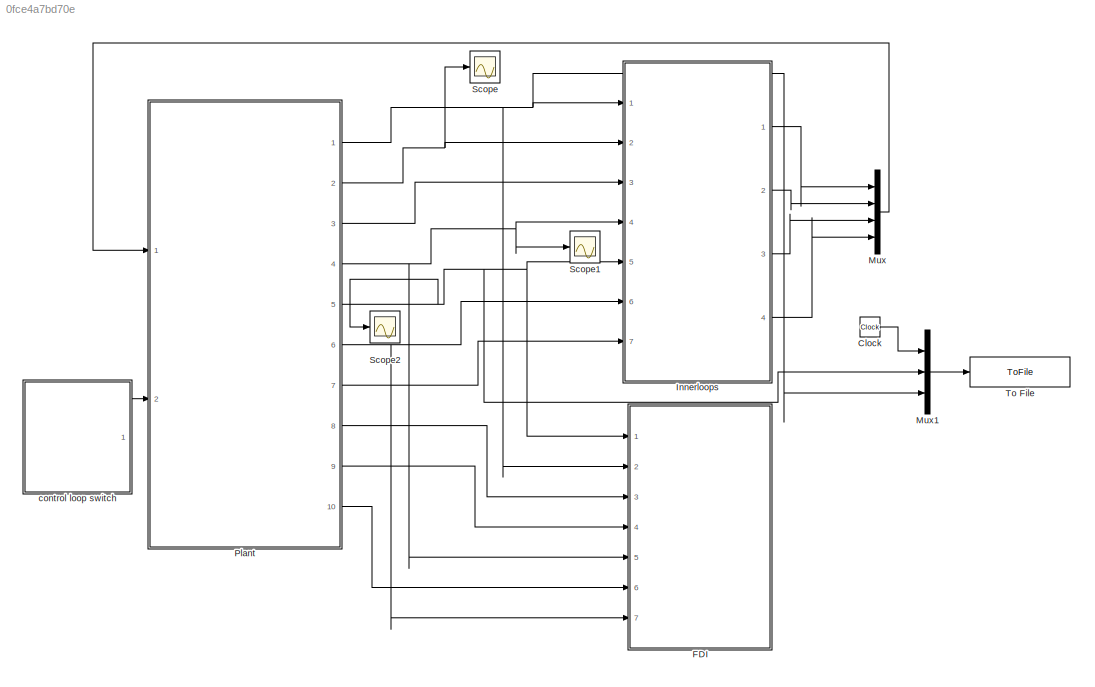
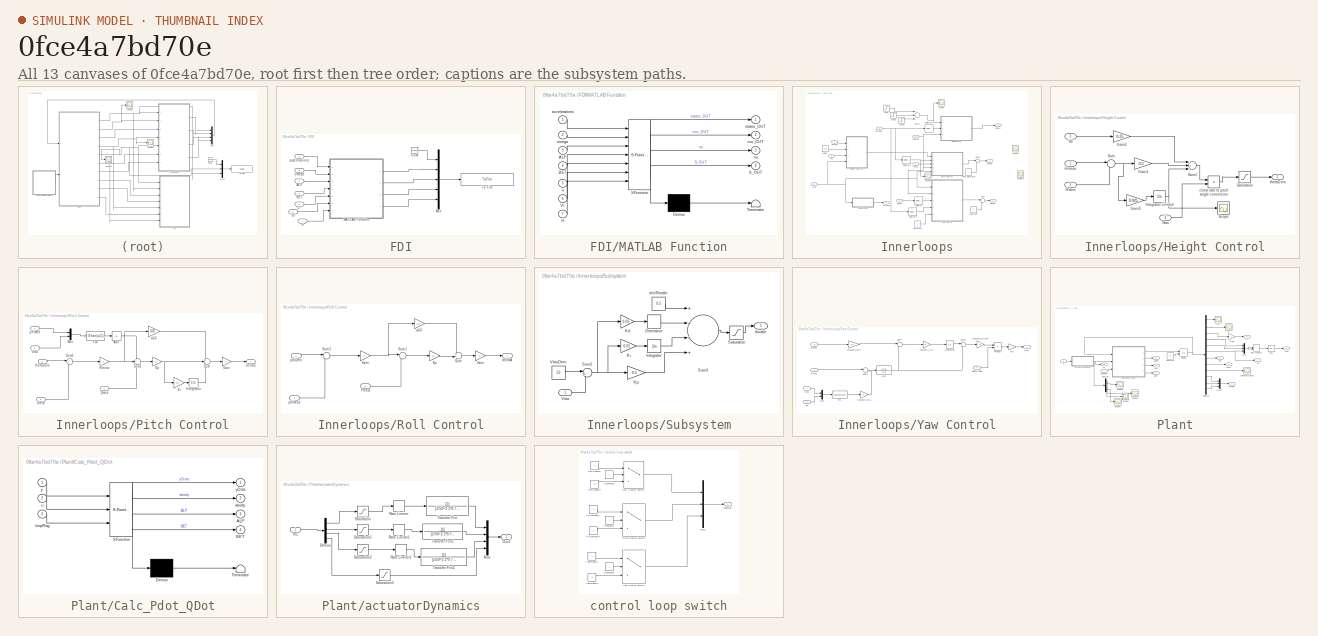
[diagram: thumbnail index - all 13 canvases of the model, root first then tree order]
MODEL slx_0fce4a7bd70e
KIND model
CONFIG InitFcn = InitialiseModel
BLOCK [Clock] Clock
BLOCK [SubSystem] FDI
  Ports = [7]
  RequestExecContextInheritance = off
BLOCK [Inport] FDI/ALP
  IconDisplay = Port number
  Port = 3
BLOCK [Inport] FDI/BET
  IconDisplay = Port number
  Port = 4
BLOCK [Clock] FDI/Clock
BLOCK [Inport] FDI/H
  IconDisplay = Port number
  Port = 7
BLOCK [SubSystem] FDI/MATLAB Function
  ErrorFcn = Stateflow.Translate.translate
  PermitHierarchicalResolution = ExplicitOnly
  Ports = [7, 4]
  RequestExecContextInheritance = off
  SFBlockType = MATLAB Function
  TreatAsAtomicUnit = on
BLOCK [Demux] FDI/MATLAB Function/ Demux 
  Outputs = 1
  Ports = [1, 1]
BLOCK [S-Function] FDI/MATLAB Function/ SFunction 
  EnableBusSupport = on
  FunctionName = sf_sfun
  PortCounts = [7 5]
  Ports = [7, 5]
  Tag = Stateflow S-Function aircraftControl_smallerStateEKF 1
BLOCK [Terminator] FDI/MATLAB Function/ Terminator 
BLOCK [Inport] FDI/MATLAB Function/ALP
  IconDisplay = Port number
  Port = 3
BLOCK [Inport] FDI/MATLAB Function/BET
  IconDisplay = Port number
  Port = 4
BLOCK [Inport] FDI/MATLAB Function/H
  IconDisplay = Port number
  Port = 7
BLOCK [Outport] FDI/MATLAB Function/S_OUT
  IconDisplay = Port number
  Port = 4
BLOCK [Inport] FDI/MATLAB Function/Vt
  IconDisplay = Port number
  Port = 6
BLOCK [Inport] FDI/MATLAB Function/accelerations
  IconDisplay = Port number
BLOCK [Outport] FDI/MATLAB Function/cov_OUT
  IconDisplay = Port number
  Port = 2
BLOCK [Outport] FDI/MATLAB Function/nu
  IconDisplay = Port number
  Port = 3
BLOCK [Inport] FDI/MATLAB Function/omega
  IconDisplay = Port number
  Port = 2
BLOCK [Outport] FDI/MATLAB Function/states_OUT
  IconDisplay = Port number
BLOCK [Inport] FDI/MATLAB Function/u
  IconDisplay = Port number
  Port = 5
BLOCK [Mux] FDI/Mux
  DisplayOption = bar
  Inputs = 5
  Ports = [5, 1]
BLOCK [ToFile] FDI/To File
  Filename = EKF_data_smallerStateVec.mat
  MatrixName = EKF
  Ports = [1]
  SaveFormat = Timeseries
BLOCK [Inport] FDI/Vt
  IconDisplay = Port number
  Port = 5
BLOCK [Inport] FDI/accelerations
  IconDisplay = Port number
BLOCK [Inport] FDI/omega
  IconDisplay = Port number
  Port = 2
BLOCK [Inport] FDI/u*
  IconDisplay = Port number
  Port = 6
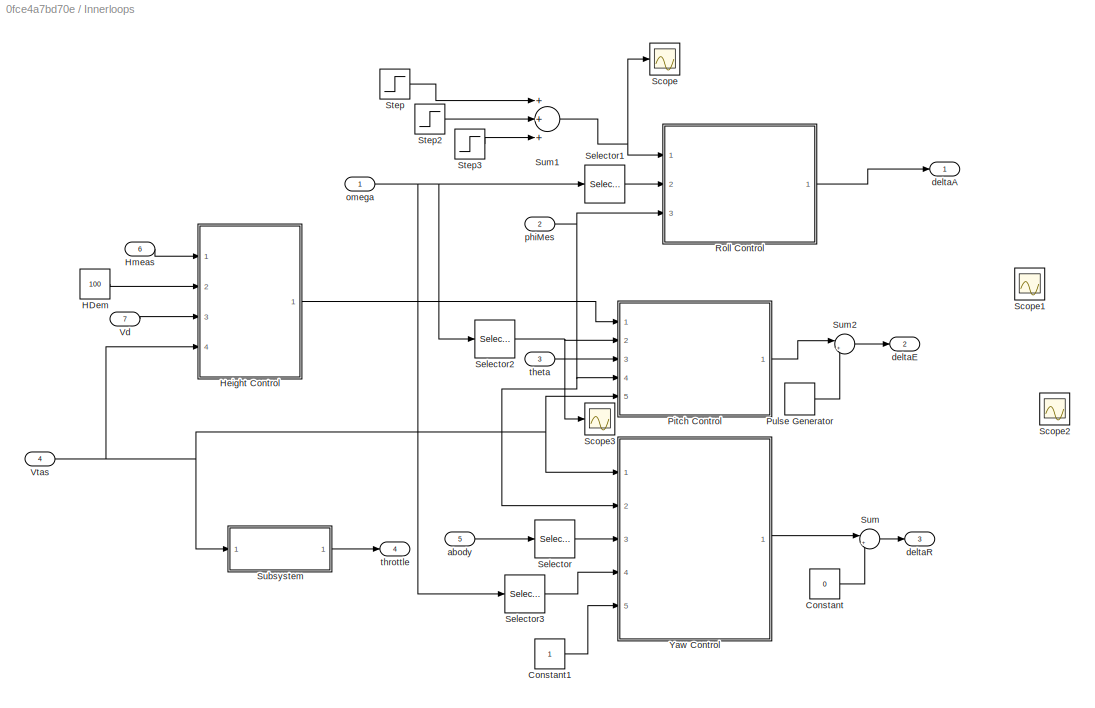
BLOCK [SubSystem] Innerloops
  Ports = [7, 4]
  RequestExecContextInheritance = off
BLOCK [Constant] Innerloops/Constant
  Value = 0
BLOCK [Constant] Innerloops/Constant1
BLOCK [Constant] Innerloops/HDem
  Value = 100
BLOCK [SubSystem] Innerloops/Height Control
  Ports = [4, 1]
  RequestExecContextInheritance = off
BLOCK [Gain] Innerloops/Height Control/Gain1
  Gain = 0.5
  OutDataTypeStr = Inherit: Inherit via internal rule
  ParamDataTypeStr = Inherit: Inherit via internal rule
  SaturateOnIntegerOverflow = off
BLOCK [Gain] Innerloops/Height Control/Gain2
  Gain = 0.25
  OutDataTypeStr = Inherit: Inherit via internal rule
  ParamDataTypeStr = Inherit: Inherit via internal rule
  SaturateOnIntegerOverflow = off
BLOCK [Gain] Innerloops/Height Control/Gain3
  Gain = 0.025
  OutDataTypeStr = Inherit: Inherit via internal rule
  ParamDataTypeStr = Inherit: Inherit via internal rule
  SaturateOnIntegerOverflow = off
BLOCK [Inport] Innerloops/Height Control/Hdem
  IconDisplay = Port number
  Port = 2
BLOCK [Inport] Innerloops/Height Control/Hmeas
  IconDisplay = Port number
BLOCK [Integrator] Innerloops/Height Control/Integrator Limited
  LimitOutput = on
  LowerSaturationLimit = -5
  Ports = [1, 1]
  UpperSaturationLimit = 5
BLOCK [Saturate] Innerloops/Height Control/Saturation
  InputPortMap = u0
  LowerLimit = 0
  Ports = [1, 1]
  UpperLimit = 0.25
BLOCK [Scope] Innerloops/Height Control/Scope
  Decimation = 10
  Floating = off
  LimitDataPoints = off
  NumInputPorts = 1
  Ports = [1]
  SaveName = ScopeData5
  ShowLegends = off
BLOCK [Sum] Innerloops/Height Control/Sum
  IconShape = round
  InputSameDT = off
  Inputs = |-+
  OutDataTypeStr = Inherit: Inherit via internal rule
  Ports = [2, 1]
  SaturateOnIntegerOverflow = off
BLOCK [Sum] Innerloops/Height Control/Sum1
  InputSameDT = off
  Inputs = +++
  OutDataTypeStr = Inherit: Inherit via internal rule
  Ports = [3, 1]
  SaturateOnIntegerOverflow = off
BLOCK [Inport] Innerloops/Height Control/Vd
  IconDisplay = Port number
  Port = 3
BLOCK [Inport] Innerloops/Height Control/Vtas
  IconDisplay = Port number
  Port = 4
BLOCK [Product] Innerloops/Height Control/climb rate to pitch angle conversion
  InputSameDT = off
  Inputs = */
  OutDataTypeStr = Inherit: Inherit via internal rule
  Ports = [2, 1]
  RndMeth = Floor
  SaturateOnIntegerOverflow = off
BLOCK [Outport] Innerloops/Height Control/thetaDem
  IconDisplay = Port number
BLOCK [Inport] Innerloops/Hmeas
  IconDisplay = Port number
  Port = 6
BLOCK [SubSystem] Innerloops/Pitch Control
  Ports = [5, 1]
  RequestExecContextInheritance = off
BLOCK [Abs] Innerloops/Pitch Control/Abs
  SaturateOnIntegerOverflow = off
BLOCK [Fcn] Innerloops/Pitch Control/Fcn
  Expr = (9.8*tan(u(1))*sin(u(1))/u(2))
BLOCK [Gain] Innerloops/Pitch Control/Gain
  Gain = -1
  OutDataTypeStr = Inherit: Inherit via internal rule
  ParamDataTypeStr = Inherit: Inherit via internal rule
  SaturateOnIntegerOverflow = off
BLOCK [Integrator] Innerloops/Pitch Control/Integrator
  Ports = [1, 1]
BLOCK [Gain] Innerloops/Pitch Control/KFF
  Gain = 0.01
  OutDataTypeStr = Inherit: Inherit via internal rule
  ParamDataTypeStr = Inherit: Inherit via internal rule
  SaturateOnIntegerOverflow = off
BLOCK [Gain] Innerloops/Pitch Control/Ki
  Gain = 0.7
  OutDataTypeStr = Inherit: Inherit via internal rule
  ParamDataTypeStr = Inherit: Inherit via internal rule
  SaturateOnIntegerOverflow = off
BLOCK [Gain] Innerloops/Pitch Control/Kp
  Gain = 1.2
  OutDataTypeStr = Inherit: Inherit via internal rule
  ParamDataTypeStr = Inherit: Inherit via internal rule
  SaturateOnIntegerOverflow = off
BLOCK [Gain] Innerloops/Pitch Control/Ktheta
  Gain = 2
  OutDataTypeStr = Inherit: Inherit via internal rule
  ParamDataTypeStr = Inherit: Inherit via internal rule
  SaturateOnIntegerOverflow = off
BLOCK [Mux] Innerloops/Pitch Control/Mux
  DisplayOption = bar
  Inputs = 2
  Ports = [2, 1]
BLOCK [Inport] Innerloops/Pitch Control/Qmea
  IconDisplay = Port number
  Port = 2
BLOCK [Sum] Innerloops/Pitch Control/Sum
  IconShape = round
  InputSameDT = off
  Inputs = +++
  OutDataTypeStr = Inherit: Inherit via internal rule
  Ports = [3, 1]
  SaturateOnIntegerOverflow = off
BLOCK [Sum] Innerloops/Pitch Control/Sum1
  IconShape = round
  InputSameDT = off
  Inputs = ++-
  OutDataTypeStr = Inherit: Inherit via internal rule
  Ports = [3, 1]
  SaturateOnIntegerOverflow = off
BLOCK [Sum] Innerloops/Pitch Control/Sum2
  IconShape = round
  InputSameDT = off
  Inputs = |+-
  OutDataTypeStr = Inherit: Inherit via internal rule
  Ports = [2, 1]
  SaturateOnIntegerOverflow = off
BLOCK [Inport] Innerloops/Pitch Control/Vtas
  IconDisplay = Port number
  Port = 5
BLOCK [Outport] Innerloops/Pitch Control/deltaE
  IconDisplay = Port number
BLOCK [Inport] Innerloops/Pitch Control/phiMea
  IconDisplay = Port number
  Port = 4
BLOCK [Inport] Innerloops/Pitch Control/theta
  IconDisplay = Port number
  Port = 3
BLOCK [Inport] Innerloops/Pitch Control/thetaDem
  IconDisplay = Port number
BLOCK [DiscretePulseGenerator] Innerloops/Pulse Generator
  Amplitude = 0.1
  Period = 1
  Ports = [0, 1]
  PulseType = Time based
  PulseWidth = 50
BLOCK [SubSystem] Innerloops/Roll Control
  Ports = [3, 1]
  RequestExecContextInheritance = off
BLOCK [Gain] Innerloops/Roll Control/Gain
  Gain = -1
  OutDataTypeStr = Inherit: Inherit via internal rule
  ParamDataTypeStr = Inherit: Inherit via internal rule
  SaturateOnIntegerOverflow = off
BLOCK [Gain] Innerloops/Roll Control/KFF
  Gain = 0.8
  OutDataTypeStr = Inherit: Inherit via internal rule
  ParamDataTypeStr = Inherit: Inherit via internal rule
  SaturateOnIntegerOverflow = off
BLOCK [Gain] Innerloops/Roll Control/Kp
  Gain = 2.2
  OutDataTypeStr = Inherit: Inherit via internal rule
  ParamDataTypeStr = Inherit: Inherit via internal rule
  SaturateOnIntegerOverflow = off
BLOCK [Gain] Innerloops/Roll Control/Kphi
  Gain = 2
  OutDataTypeStr = Inherit: Inherit via internal rule
  ParamDataTypeStr = Inherit: Inherit via internal rule
  SaturateOnIntegerOverflow = off
BLOCK [Inport] Innerloops/Roll Control/Pmea
  IconDisplay = Port number
  Port = 2
BLOCK [Sum] Innerloops/Roll Control/Sum
  IconShape = round
  InputSameDT = off
  Inputs = ++|
  OutDataTypeStr = Inherit: Inherit via internal rule
  Ports = [2, 1]
  SaturateOnIntegerOverflow = off
BLOCK [Sum] Innerloops/Roll Control/Sum1
  IconShape = round
  InputSameDT = off
  Inputs = |+-
  OutDataTypeStr = Inherit: Inherit via internal rule
  Ports = [2, 1]
  SaturateOnIntegerOverflow = off
BLOCK [Sum] Innerloops/Roll Control/Sum2
  IconShape = round
  InputSameDT = off
  Inputs = |+-
  OutDataTypeStr = Inherit: Inherit via internal rule
  Ports = [2, 1]
  SaturateOnIntegerOverflow = off
BLOCK [Outport] Innerloops/Roll Control/deltaA
  IconDisplay = Port number
BLOCK [Inport] Innerloops/Roll Control/phiDem
  IconDisplay = Port number
BLOCK [Inport] Innerloops/Roll Control/phiMea
  IconDisplay = Port number
  Port = 3
BLOCK [Scope] Innerloops/Scope
  DataFormat = StructureWithTime
  Floating = off
  NumInputPorts = 1
  Ports = [1]
  SampleTime = 0
  SaveName = ScopeData2
  ShowLegends = off
BLOCK [Scope] Innerloops/Scope1
  Floating = off
  NumInputPorts = 1
  Ports = [1]
  SaveName = ScopeData11
  ShowLegends = off
BLOCK [Scope] Innerloops/Scope2
  Floating = off
  NumInputPorts = 1
  Ports = [1]
  SaveName = ScopeData12
  ShowLegends = off
BLOCK [Scope] Innerloops/Scope3
  Floating = off
  NumInputPorts = 1
  Ports = [1]
  SaveName = ScopeData13
  ShowLegends = off
BLOCK [Selector] Innerloops/Selector
  Indices = 2
  InputPortWidth = 3
  Ports = [1, 1]
BLOCK [Selector] Innerloops/Selector1
  InputPortWidth = 3
  Ports = [1, 1]
BLOCK [Selector] Innerloops/Selector2
  Indices = 2
  InputPortWidth = 3
  Ports = [1, 1]
BLOCK [Selector] Innerloops/Selector3
  Indices = 3
  InputPortWidth = 3
  Ports = [1, 1]
BLOCK [Step] Innerloops/Step
  After = 0.5
  SampleTime = 0
BLOCK [Step] Innerloops/Step2
  After = -1
  SampleTime = 0
  Time = 40
BLOCK [Step] Innerloops/Step3
  After = 0.5
  SampleTime = 0
  Time = 70
BLOCK [SubSystem] Innerloops/Subsystem
  Ports = [1, 1]
  RequestExecContextInheritance = off
BLOCK [Derivative] Innerloops/Subsystem/Derivative
BLOCK [Integrator] Innerloops/Subsystem/Integrator
  LimitOutput = on
  LowerSaturationLimit = -0.5
  Ports = [1, 1]
  UpperSaturationLimit = 0.5
BLOCK [Gain] Innerloops/Subsystem/Kd
  Gain = 0.05
  OutDataTypeStr = Inherit: Inherit via internal rule
  ParamDataTypeStr = Inherit: Inherit via internal rule
  SaturateOnIntegerOverflow = off
BLOCK [Gain] Innerloops/Subsystem/Ki
  Gain = 0.01
  OutDataTypeStr = Inherit: Inherit via internal rule
  ParamDataTypeStr = Inherit: Inherit via internal rule
  SaturateOnIntegerOverflow = off
BLOCK [Gain] Innerloops/Subsystem/Kp
  Gain = 0.1
  OutDataTypeStr = Inherit: Inherit via internal rule
  ParamDataTypeStr = Inherit: Inherit via internal rule
  SaturateOnIntegerOverflow = off
BLOCK [Saturate] Innerloops/Subsystem/Saturation
  InputPortMap = u0
  LowerLimit = 0
  Ports = [1, 1]
  UpperLimit = 1
BLOCK [Sum] Innerloops/Subsystem/Sum2
  IconShape = round
  InputSameDT = off
  Inputs = |+-
  OutDataTypeStr = Inherit: Inherit via internal rule
  Ports = [2, 1]
  SaturateOnIntegerOverflow = off
BLOCK [Sum] Innerloops/Subsystem/Sum3
  InputSameDT = off
  Inputs = ++++
  OutDataTypeStr = Inherit: Inherit via internal rule
  Ports = [4, 1]
  SaturateOnIntegerOverflow = off
BLOCK [Inport] Innerloops/Subsystem/Vtas
  IconDisplay = Port number
BLOCK [Constant] Innerloops/Subsystem/VtasDem
  Value = 50
BLOCK [Outport] Innerloops/Subsystem/throttle
  IconDisplay = Port number
BLOCK [Constant] Innerloops/Subsystem/trimThrottle
  Value = 0.5
BLOCK [Sum] Innerloops/Sum
  IconShape = round
  InputSameDT = off
  Inputs = |++
  OutDataTypeStr = Inherit: Inherit via internal rule
  Ports = [2, 1]
  SaturateOnIntegerOverflow = off
BLOCK [Sum] Innerloops/Sum1
  InputSameDT = off
  Inputs = +++
  OutDataTypeStr = Inherit: Inherit via internal rule
  Ports = [3, 1]
  SaturateOnIntegerOverflow = off
BLOCK [Sum] Innerloops/Sum2
  IconShape = round
  InputSameDT = off
  Inputs = |++
  OutDataTypeStr = Inherit: Inherit via internal rule
  Ports = [2, 1]
  SaturateOnIntegerOverflow = off
BLOCK [Inport] Innerloops/Vd
  IconDisplay = Port number
  Port = 7
BLOCK [Inport] Innerloops/Vtas
  IconDisplay = Port number
  Port = 4
BLOCK [SubSystem] Innerloops/Yaw Control
  Ports = [5, 1]
  RequestExecContextInheritance = off
BLOCK [Fcn] Innerloops/Yaw Control/Fcn
  Expr = 9.81*tan(u(2)/u(1))*cos(u(2))
BLOCK [TransferFcn] Innerloops/Yaw Control/HPF
  Denominator = [5 1]
  Numerator = [5 0]
BLOCK [Integrator] Innerloops/Yaw Control/Integrator1
  LimitOutput = on
  LowerSaturationLimit = -0.05
  Ports = [1, 1]
  UpperSaturationLimit = 0.05
BLOCK [Gain] Innerloops/Yaw Control/Kff1
  Gain = -1
  OutDataTypeStr = Inherit: Inherit via internal rule
  ParamDataTypeStr = Inherit: Inherit via internal rule
  SaturateOnIntegerOverflow = off
BLOCK [Mux] Innerloops/Yaw Control/Mux
  DisplayOption = bar
  Inputs = 2
  Ports = [2, 1]
BLOCK [Outport] Innerloops/Yaw Control/Out1
  IconDisplay = Port number
BLOCK [Product] Innerloops/Yaw Control/Product
  InputSameDT = off
  OutDataTypeStr = Inherit: Inherit via internal rule
  Ports = [2, 1]
  RndMeth = Floor
  SaturateOnIntegerOverflow = off
BLOCK [Inport] Innerloops/Yaw Control/Rmes
  IconDisplay = Port number
  Port = 4
BLOCK [Sum] Innerloops/Yaw Control/Sum3
  IconShape = round
  InputSameDT = off
  Inputs = |--
  OutDataTypeStr = Inherit: Inherit via internal rule
  Ports = [2, 1]
  SaturateOnIntegerOverflow = off
BLOCK [Sum] Innerloops/Yaw Control/Sum4
  IconShape = round
  InputSameDT = off
  Inputs = |+-
  OutDataTypeStr = Inherit: Inherit via internal rule
  Ports = [2, 1]
  SaturateOnIntegerOverflow = off
BLOCK [Sum] Innerloops/Yaw Control/Sum5
  IconShape = round
  InputSameDT = off
  Inputs = |+-
  OutDataTypeStr = Inherit: Inherit via internal rule
  Ports = [2, 1]
  SaturateOnIntegerOverflow = off
BLOCK [Inport] Innerloops/Yaw Control/Vtas
  IconDisplay = Port number
BLOCK [Gain] Innerloops/Yaw Control/YAW2SRV_DAMP
  Gain = 3
  OutDataTypeStr = Inherit: Inherit via internal rule
  ParamDataTypeStr = Inherit: Inherit via internal rule
  SaturateOnIntegerOverflow = off
BLOCK [Gain] Innerloops/Yaw Control/YAW2SRV_INT
  OutDataTypeStr = Inherit: Inherit via internal rule
  ParamDataTypeStr = Inherit: Inherit via internal rule
  SaturateOnIntegerOverflow = off
BLOCK [Gain] Innerloops/Yaw Control/YAW2SRV_RLL
  OutDataTypeStr = Inherit: Inherit via internal rule
  ParamDataTypeStr = Inherit: Inherit via internal rule
  SaturateOnIntegerOverflow = off
BLOCK [Gain] Innerloops/Yaw Control/YAW2SRV_SLIP
  Gain = 0.1
  OutDataTypeStr = Inherit: Inherit via internal rule
  ParamDataTypeStr = Inherit: Inherit via internal rule
  SaturateOnIntegerOverflow = off
BLOCK [Inport] Innerloops/Yaw Control/ayMes
  IconDisplay = Port number
  Port = 3
BLOCK [Inport] Innerloops/Yaw Control/phi
  IconDisplay = Port number
  Port = 2
BLOCK [Inport] Innerloops/Yaw Control/speed scalar
  IconDisplay = Port number
  Port = 5
BLOCK [Inport] Innerloops/abody
  IconDisplay = Port number
  Port = 5
BLOCK [Outport] Innerloops/deltaA
  IconDisplay = Port number
BLOCK [Outport] Innerloops/deltaE
  IconDisplay = Port number
  Port = 2
BLOCK [Outport] Innerloops/deltaR
  IconDisplay = Port number
  Port = 3
BLOCK [Inport] Innerloops/omega
  IconDisplay = Port number
BLOCK [Inport] Innerloops/phiMes
  IconDisplay = Port number
  Port = 2
BLOCK [Inport] Innerloops/theta
  IconDisplay = Port number
  Port = 3
BLOCK [Outport] Innerloops/throttle
  IconDisplay = Port number
  Port = 4
BLOCK [Mux] Mux
  DisplayOption = bar
  Ports = [4, 1]
BLOCK [Mux] Mux1
  DisplayOption = bar
  Inputs = 3
  Ports = [3, 1]
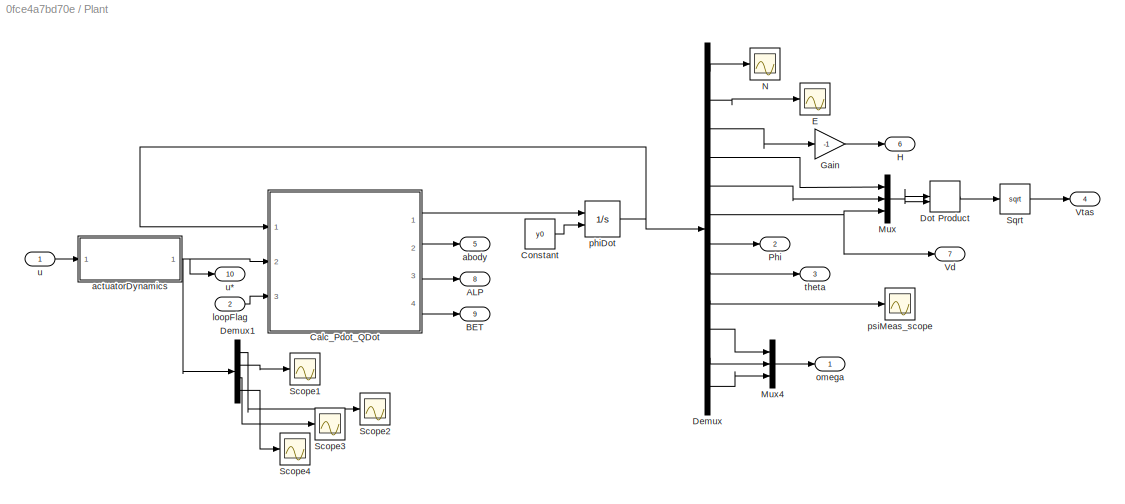
BLOCK [SubSystem] Plant
  Ports = [2, 10]
  RequestExecContextInheritance = off
BLOCK [Outport] Plant/ALP
  IconDisplay = Port number
  Port = 8
BLOCK [Outport] Plant/BET
  IconDisplay = Port number
  Port = 9
BLOCK [SubSystem] Plant/Calc_Pdot_QDot
  ErrorFcn = Stateflow.Translate.translate
  PermitHierarchicalResolution = ExplicitOnly
  Ports = [3, 4]
  RequestExecContextInheritance = off
  SFBlockType = MATLAB Function
  TreatAsAtomicUnit = on
BLOCK [Demux] Plant/Calc_Pdot_QDot/ Demux 
  Outputs = 1
  Ports = [1, 1]
BLOCK [S-Function] Plant/Calc_Pdot_QDot/ SFunction 
  EnableBusSupport = on
  FunctionName = sf_sfun
  PortCounts = [3 5]
  Ports = [3, 5]
  Tag = Stateflow S-Function aircraftControl_smallerStateEKF 2
BLOCK [Terminator] Plant/Calc_Pdot_QDot/ Terminator 
BLOCK [Outport] Plant/Calc_Pdot_QDot/ALP
  IconDisplay = Port number
  Port = 3
BLOCK [Outport] Plant/Calc_Pdot_QDot/BET
  IconDisplay = Port number
  Port = 4
BLOCK [Outport] Plant/Calc_Pdot_QDot/abody
  IconDisplay = Port number
  Port = 2
BLOCK [Inport] Plant/Calc_Pdot_QDot/loopFlag
  IconDisplay = Port number
  Port = 3
BLOCK [Inport] Plant/Calc_Pdot_QDot/u
  IconDisplay = Port number
  Port = 2
BLOCK [Inport] Plant/Calc_Pdot_QDot/y
  IconDisplay = Port number
BLOCK [Outport] Plant/Calc_Pdot_QDot/yDots
  IconDisplay = Port number
BLOCK [Constant] Plant/Constant
  Value = y0
BLOCK [Demux] Plant/Demux
  DisplayOption = bar
  Outputs = 12
  Ports = [1, 12]
BLOCK [Demux] Plant/Demux1
  DisplayOption = bar
  Ports = [1, 4]
BLOCK [DotProduct] Plant/Dot Product
  OutDataTypeStr = Inherit: Inherit via internal rule
BLOCK [Scope] Plant/E
  DataFormat = StructureWithTime
  Floating = off
  NumInputPorts = 1
  Ports = [1]
  SampleTime = 0
  SaveName = ScopeData8
  ShowLegends = off
BLOCK [Gain] Plant/Gain
  Gain = -1
  OutDataTypeStr = Inherit: Inherit via internal rule
  ParamDataTypeStr = Inherit: Inherit via internal rule
  SaturateOnIntegerOverflow = off
BLOCK [Outport] Plant/H
  IconDisplay = Port number
  Port = 6
BLOCK [Mux] Plant/Mux
  DisplayOption = bar
  Inputs = 3
  Ports = [3, 1]
BLOCK [Mux] Plant/Mux4
  DisplayOption = bar
  Inputs = 3
  Ports = [3, 1]
BLOCK [Scope] Plant/N
  DataFormat = StructureWithTime
  Floating = off
  NumInputPorts = 1
  Ports = [1]
  SampleTime = 0
  SaveName = ScopeData7
  ShowLegends = off
BLOCK [Outport] Plant/Phi
  IconDisplay = Port number
  Port = 2
BLOCK [Scope] Plant/Scope1
  Floating = off
  NumInputPorts = 1
  Ports = [1]
  SaveName = ScopeData4
  ShowLegends = off
BLOCK [Scope] Plant/Scope2
  Floating = off
  NumInputPorts = 1
  Ports = [1]
  SaveName = ScopeData6
  ShowLegends = off
BLOCK [Scope] Plant/Scope3
  Floating = off
  NumInputPorts = 1
  Ports = [1]
  SaveName = ScopeData9
  ShowLegends = off
BLOCK [Scope] Plant/Scope4
  Floating = off
  NumInputPorts = 1
  Ports = [1]
  SaveName = ScopeData10
  ShowLegends = off
BLOCK [Sqrt] Plant/Sqrt
BLOCK [Outport] Plant/Vd
  IconDisplay = Port number
  Port = 7
BLOCK [Outport] Plant/Vtas
  IconDisplay = Port number
  Port = 4
BLOCK [Outport] Plant/abody
  IconDisplay = Port number
  Port = 5
BLOCK [SubSystem] Plant/actuatorDynamics
  Ports = [1, 1]
  RequestExecContextInheritance = off
BLOCK [Demux] Plant/actuatorDynamics/Demux
  DisplayOption = bar
  Ports = [1, 4]
BLOCK [Inport] Plant/actuatorDynamics/In1
  IconDisplay = Port number
BLOCK [Mux] Plant/actuatorDynamics/Mux
  DisplayOption = bar
  Ports = [4, 1]
BLOCK [Outport] Plant/actuatorDynamics/Out1
  IconDisplay = Port number
BLOCK [RateLimiter] Plant/actuatorDynamics/Rate Limiter
  FallingSlewLimit = -5
  RisingSlewLimit = 5
  SampleTimeMode = inherited
BLOCK [RateLimiter] Plant/actuatorDynamics/Rate Limiter1
  FallingSlewLimit = -5
  RisingSlewLimit = 5
  SampleTimeMode = inherited
BLOCK [RateLimiter] Plant/actuatorDynamics/Rate Limiter2
  FallingSlewLimit = -5
  RisingSlewLimit = 5
  SampleTimeMode = inherited
BLOCK [Saturate] Plant/actuatorDynamics/Saturation
  InputPortMap = u0
  LowerLimit = -0.9
  Ports = [1, 1]
  UpperLimit = 0.9
BLOCK [Saturate] Plant/actuatorDynamics/Saturation1
  InputPortMap = u0
  LowerLimit = -0.9
  Ports = [1, 1]
  UpperLimit = 0.9
BLOCK [Saturate] Plant/actuatorDynamics/Saturation2
  InputPortMap = u0
  LowerLimit = -0.9
  Ports = [1, 1]
  UpperLimit = 0.9
BLOCK [Saturate] Plant/actuatorDynamics/Saturation3
  InputPortMap = u0
  LowerLimit = 0
  Ports = [1, 1]
  UpperLimit = 1
BLOCK [TransferFcn] Plant/actuatorDynamics/Transfer Fcn
  Denominator = [1/50^2 2*0.7/50 1]
BLOCK [TransferFcn] Plant/actuatorDynamics/Transfer Fcn1
  Denominator = [1/50^2 2*0.7/50 1]
BLOCK [TransferFcn] Plant/actuatorDynamics/Transfer Fcn2
  Denominator = [1/50^2 2*0.7/50 1]
BLOCK [Inport] Plant/loopFlag
  IconDisplay = Port number
  Port = 2
BLOCK [Outport] Plant/omega
  IconDisplay = Port number
BLOCK [Integrator] Plant/phiDot
  InitialConditionSource = external
  Ports = [2, 1]
BLOCK [Scope] Plant/psiMeas_scope
  DataFormat = StructureWithTime
  Floating = off
  NumInputPorts = 1
  Ports = [1]
  SampleTime = 0
  SaveName = ScopeData23
  ShowLegends = off
BLOCK [Outport] Plant/theta
  IconDisplay = Port number
  Port = 3
BLOCK [Inport] Plant/u
  IconDisplay = Port number
BLOCK [Outport] Plant/u*
  IconDisplay = Port number
  Port = 10
BLOCK [Scope] Scope
  DataFormat = StructureWithTime
  Floating = off
  NumInputPorts = 1
  Ports = [1]
  SampleTime = 0
  ShowLegends = off
BLOCK [Scope] Scope1
  DataFormat = StructureWithTime
  Floating = off
  NumInputPorts = 1
  Ports = [1]
  SampleTime = 0
  SaveName = ScopeData1
  ShowLegends = off
BLOCK [Scope] Scope2
  DataFormat = StructureWithTime
  Floating = off
  NumInputPorts = 1
  Ports = [1]
  SampleTime = 0
  SaveName = ScopeData3
  ShowLegends = off
BLOCK [ToFile] To File
  Filename = accelOmega_EKFsmallerStateVec.mat
  MatrixName = AO
  Ports = [1]
  SaveFormat = Timeseries
BLOCK [SubSystem] control loop switch
  Ports = [0, 1]
  RequestExecContextInheritance = off
BLOCK [Constant] control loop switch/Constant6
BLOCK [Constant] control loop switch/Constant7
BLOCK [Constant] control loop switch/Constant8
BLOCK [Outport] control loop switch/LoopFlag
  IconDisplay = Port number
BLOCK [Mux] control loop switch/Mux1
  DisplayOption = bar
  Inputs = 3
  Ports = [3, 1]
BLOCK [Switch] control loop switch/Pitch Control on//off1
  Criteria = u2 > Threshold
  InputSameDT = off
  SaturateOnIntegerOverflow = off
BLOCK [Constant] control loop switch/PitchFlagOff
  Value = 0
BLOCK [Constant] control loop switch/PitchFlagOn
BLOCK [Switch] control loop switch/Roll Control on//off1
  Criteria = u2 > Threshold
  InputSameDT = off
  SaturateOnIntegerOverflow = off
BLOCK [Constant] control loop switch/RollFlagOff
  Value = 0
BLOCK [Constant] control loop switch/RollFlagOn
BLOCK [Switch] control loop switch/Yaw Control on//off1
  Criteria = u2 > Threshold
  InputSameDT = off
  SaturateOnIntegerOverflow = off
BLOCK [Constant] control loop switch/YawFlagOff
  Value = 0
BLOCK [Constant] control loop switch/YawFlagOn
LINE Clock:1 -> Mux1:1
LINE FDI/ALP:1 -> FDI/MATLAB Function:3
LINE FDI/BET:1 -> FDI/MATLAB Function:4
LINE FDI/Clock:1 -> FDI/Mux:1
LINE FDI/H:1 -> FDI/MATLAB Function:7
LINE FDI/MATLAB Function:1 -> FDI/Mux:2
LINE FDI/MATLAB Function:2 -> FDI/Mux:3
LINE FDI/MATLAB Function:3 -> FDI/Mux:4
LINE FDI/MATLAB Function:4 -> FDI/Mux:5
LINE FDI/Mux:1 -> FDI/To File:1
LINE FDI/Vt:1 -> FDI/MATLAB Function:6
LINE FDI/accelerations:1 -> FDI/MATLAB Function:1
LINE FDI/omega:1 -> FDI/MATLAB Function:2
LINE FDI/u*:1 -> FDI/MATLAB Function:5
LINE Innerloops/Constant1:1 -> Innerloops/Yaw Control:5
LINE Innerloops/Constant:1 -> Innerloops/Sum:2
LINE Innerloops/HDem:1 -> Innerloops/Height Control:2
LINE Innerloops/Height Control/Gain1:1 -> Innerloops/Height Control/Sum1:2
LINE Innerloops/Height Control/Gain2:1 -> Innerloops/Height Control/Sum1:1
LINE Innerloops/Height Control/Gain3:1 -> Innerloops/Height Control/Integrator Limited:1
LINE Innerloops/Height Control/Hdem:1 -> Innerloops/Height Control/Sum:2
LINE Innerloops/Height Control/Hmeas:1 -> Innerloops/Height Control/Sum:1
NET Innerloops/Height Control/Integrator Limited:1 -> Innerloops/Height Control/Scope:1, Innerloops/Height Control/Sum1:3
LINE Innerloops/Height Control/Saturation:1 -> Innerloops/Height Control/thetaDem:1
LINE Innerloops/Height Control/Sum1:1 -> Innerloops/Height Control/climb rate to pitch angle conversion:1
NET Innerloops/Height Control/Sum:1 -> Innerloops/Height Control/Gain1:1, Innerloops/Height Control/Gain3:1
LINE Innerloops/Height Control/Vd:1 -> Innerloops/Height Control/Gain2:1
LINE Innerloops/Height Control/Vtas:1 -> Innerloops/Height Control/climb rate to pitch angle conversion:2
LINE Innerloops/Height Control/climb rate to pitch angle conversion:1 -> Innerloops/Height Control/Saturation:1
LINE Innerloops/Height Control:1 -> Innerloops/Pitch Control:1
LINE Innerloops/Hmeas:1 -> Innerloops/Height Control:1
LINE Innerloops/Pitch Control/Abs:1 -> Innerloops/Pitch Control/Sum1:1
LINE Innerloops/Pitch Control/Fcn:1 -> Innerloops/Pitch Control/Abs:1
LINE Innerloops/Pitch Control/Gain:1 -> Innerloops/Pitch Control/deltaE:1
LINE Innerloops/Pitch Control/Integrator:1 -> Innerloops/Pitch Control/Sum:3
LINE Innerloops/Pitch Control/KFF:1 -> Innerloops/Pitch Control/Sum:1
LINE Innerloops/Pitch Control/Ki:1 -> Innerloops/Pitch Control/Integrator:1
NET Innerloops/Pitch Control/Kp:1 -> Innerloops/Pitch Control/Ki:1, Innerloops/Pitch Control/Sum:2
NET Innerloops/Pitch Control/Ktheta:1 -> Innerloops/Pitch Control/KFF:1, Innerloops/Pitch Control/Sum1:2
LINE Innerloops/Pitch Control/Mux:1 -> Innerloops/Pitch Control/Fcn:1
LINE Innerloops/Pitch Control/Qmea:1 -> Innerloops/Pitch Control/Sum1:3
LINE Innerloops/Pitch Control/Sum1:1 -> Innerloops/Pitch Control/Kp:1
LINE Innerloops/Pitch Control/Sum2:1 -> Innerloops/Pitch Control/Ktheta:1
LINE Innerloops/Pitch Control/Sum:1 -> Innerloops/Pitch Control/Gain:1
LINE Innerloops/Pitch Control/Vtas:1 -> Innerloops/Pitch Control/Mux:2
LINE Innerloops/Pitch Control/phiMea:1 -> Innerloops/Pitch Control/Mux:1
LINE Innerloops/Pitch Control/theta:1 -> Innerloops/Pitch Control/Sum2:2
LINE Innerloops/Pitch Control/thetaDem:1 -> Innerloops/Pitch Control/Sum2:1
LINE Innerloops/Pitch Control:1 -> Innerloops/Sum2:1
LINE Innerloops/Pulse Generator:1 -> Innerloops/Sum2:2
LINE Innerloops/Roll Control/Gain:1 -> Innerloops/Roll Control/deltaA:1
LINE Innerloops/Roll Control/KFF:1 -> Innerloops/Roll Control/Sum:1
LINE Innerloops/Roll Control/Kp:1 -> Innerloops/Roll Control/Sum:2
NET Innerloops/Roll Control/Kphi:1 -> Innerloops/Roll Control/KFF:1, Innerloops/Roll Control/Sum1:1
LINE Innerloops/Roll Control/Pmea:1 -> Innerloops/Roll Control/Sum1:2
LINE Innerloops/Roll Control/Sum1:1 -> Innerloops/Roll Control/Kp:1
LINE Innerloops/Roll Control/Sum2:1 -> Innerloops/Roll Control/Kphi:1
LINE Innerloops/Roll Control/Sum:1 -> Innerloops/Roll Control/Gain:1
LINE Innerloops/Roll Control/phiDem:1 -> Innerloops/Roll Control/Sum2:1
LINE Innerloops/Roll Control/phiMea:1 -> Innerloops/Roll Control/Sum2:2
LINE Innerloops/Roll Control:1 -> Innerloops/deltaA:1
LINE Innerloops/Selector1:1 -> Innerloops/Roll Control:2
NET Innerloops/Selector2:1 -> Innerloops/Pitch Control:2, Innerloops/Scope3:1
LINE Innerloops/Selector3:1 -> Innerloops/Yaw Control:4
LINE Innerloops/Selector:1 -> Innerloops/Yaw Control:3
LINE Innerloops/Step2:1 -> Innerloops/Sum1:2
LINE Innerloops/Step3:1 -> Innerloops/Sum1:3
LINE Innerloops/Step:1 -> Innerloops/Sum1:1
LINE Innerloops/Subsystem/Derivative:1 -> Innerloops/Subsystem/Sum3:2
LINE Innerloops/Subsystem/Integrator:1 -> Innerloops/Subsystem/Sum3:3
LINE Innerloops/Subsystem/Kd:1 -> Innerloops/Subsystem/Derivative:1
LINE Innerloops/Subsystem/Ki:1 -> Innerloops/Subsystem/Integrator:1
LINE Innerloops/Subsystem/Kp:1 -> Innerloops/Subsystem/Sum3:4
LINE Innerloops/Subsystem/Saturation:1 -> Innerloops/Subsystem/throttle:1
NET Innerloops/Subsystem/Sum2:1 -> Innerloops/Subsystem/Kd:1, Innerloops/Subsystem/Ki:1, Innerloops/Subsystem/Kp:1
LINE Innerloops/Subsystem/Sum3:1 -> Innerloops/Subsystem/Saturation:1
LINE Innerloops/Subsystem/Vtas:1 -> Innerloops/Subsystem/Sum2:2
LINE Innerloops/Subsystem/VtasDem:1 -> Innerloops/Subsystem/Sum2:1
LINE Innerloops/Subsystem/trimThrottle:1 -> Innerloops/Subsystem/Sum3:1
LINE Innerloops/Subsystem:1 -> Innerloops/throttle:1
NET Innerloops/Sum1:1 -> Innerloops/Roll Control:1, Innerloops/Scope:1
LINE Innerloops/Sum2:1 -> Innerloops/deltaE:1
LINE Innerloops/Sum:1 -> Innerloops/deltaR:1
LINE Innerloops/Vd:1 -> Innerloops/Height Control:3
NET Innerloops/Vtas:1 -> Innerloops/Height Control:4, Innerloops/Pitch Control:5, Innerloops/Subsystem:1, Innerloops/Yaw Control:1
LINE Innerloops/Yaw Control/Fcn:1 -> Innerloops/Yaw Control/YAW2SRV_RLL:1
NET Innerloops/Yaw Control/HPF:1 -> Innerloops/Yaw Control/Sum3:2, Innerloops/Yaw Control/Sum5:2
LINE Innerloops/Yaw Control/Integrator1:1 -> Innerloops/Yaw Control/Sum5:1
LINE Innerloops/Yaw Control/Kff1:1 -> Innerloops/Yaw Control/Out1:1
LINE Innerloops/Yaw Control/Mux:1 -> Innerloops/Yaw Control/Fcn:1
LINE Innerloops/Yaw Control/Product:1 -> Innerloops/Yaw Control/Kff1:1
LINE Innerloops/Yaw Control/Rmes:1 -> Innerloops/Yaw Control/Sum4:1
LINE Innerloops/Yaw Control/Sum3:1 -> Innerloops/Yaw Control/YAW2SRV_INT:1
LINE Innerloops/Yaw Control/Sum4:1 -> Innerloops/Yaw Control/HPF:1
LINE Innerloops/Yaw Control/Sum5:1 -> Innerloops/Yaw Control/YAW2SRV_DAMP:1
LINE Innerloops/Yaw Control/Vtas:1 -> Innerloops/Yaw Control/Mux:1
LINE Innerloops/Yaw Control/YAW2SRV_DAMP:1 -> Innerloops/Yaw Control/Product:1
LINE Innerloops/Yaw Control/YAW2SRV_INT:1 -> Innerloops/Yaw Control/Integrator1:1
LINE Innerloops/Yaw Control/YAW2SRV_RLL:1 -> Innerloops/Yaw Control/Sum4:2
LINE Innerloops/Yaw Control/YAW2SRV_SLIP:1 -> Innerloops/Yaw Control/Sum3:1
LINE Innerloops/Yaw Control/ayMes:1 -> Innerloops/Yaw Control/YAW2SRV_SLIP:1
LINE Innerloops/Yaw Control/phi:1 -> Innerloops/Yaw Control/Mux:2
LINE Innerloops/Yaw Control/speed scalar:1 -> Innerloops/Yaw Control/Product:2
LINE Innerloops/Yaw Control:1 -> Innerloops/Sum:1
LINE Innerloops/abody:1 -> Innerloops/Selector:1
NET Innerloops/omega:1 -> Innerloops/Selector1:1, Innerloops/Selector2:1, Innerloops/Selector3:1
NET Innerloops/phiMes:1 -> Innerloops/Pitch Control:4, Innerloops/Roll Control:3, Innerloops/Yaw Control:2
LINE Innerloops/theta:1 -> Innerloops/Pitch Control:3
LINE Innerloops:1 -> Mux:1
LINE Innerloops:2 -> Mux:2
LINE Innerloops:3 -> Mux:3
LINE Innerloops:4 -> Mux:4
LINE Mux1:1 -> To File:1
LINE Mux:1 -> Plant:1
LINE Plant/Calc_Pdot_QDot:1 -> Plant/phiDot:1
LINE Plant/Calc_Pdot_QDot:2 -> Plant/abody:1
LINE Plant/Calc_Pdot_QDot:3 -> Plant/ALP:1
LINE Plant/Calc_Pdot_QDot:4 -> Plant/BET:1
LINE Plant/Constant:1 -> Plant/phiDot:2
LINE Plant/Demux1:1 -> Plant/Scope2:1
LINE Plant/Demux1:2 -> Plant/Scope1:1
LINE Plant/Demux1:3 -> Plant/Scope3:1
LINE Plant/Demux1:4 -> Plant/Scope4:1
LINE Plant/Demux:1 -> Plant/N:1
LINE Plant/Demux:10 -> Plant/Mux4:1
LINE Plant/Demux:11 -> Plant/Mux4:2
LINE Plant/Demux:12 -> Plant/Mux4:3
LINE Plant/Demux:2 -> Plant/E:1
LINE Plant/Demux:3 -> Plant/Gain:1
LINE Plant/Demux:4 -> Plant/Mux:1
LINE Plant/Demux:5 -> Plant/Mux:2
NET Plant/Demux:6 -> Plant/Mux:3, Plant/Vd:1
LINE Plant/Demux:7 -> Plant/Phi:1
LINE Plant/Demux:8 -> Plant/theta:1
LINE Plant/Demux:9 -> Plant/psiMeas_scope:1
LINE Plant/Dot Product:1 -> Plant/Sqrt:1
LINE Plant/Gain:1 -> Plant/H:1
LINE Plant/Mux4:1 -> Plant/omega:1
NET Plant/Mux:1 -> Plant/Dot Product:1, Plant/Dot Product:2
LINE Plant/Sqrt:1 -> Plant/Vtas:1
LINE Plant/actuatorDynamics/Demux:1 -> Plant/actuatorDynamics/Saturation:1
LINE Plant/actuatorDynamics/Demux:2 -> Plant/actuatorDynamics/Saturation1:1
LINE Plant/actuatorDynamics/Demux:3 -> Plant/actuatorDynamics/Saturation2:1
LINE Plant/actuatorDynamics/Demux:4 -> Plant/actuatorDynamics/Saturation3:1
LINE Plant/actuatorDynamics/In1:1 -> Plant/actuatorDynamics/Demux:1
LINE Plant/actuatorDynamics/Mux:1 -> Plant/actuatorDynamics/Out1:1
LINE Plant/actuatorDynamics/Rate Limiter1:1 -> Plant/actuatorDynamics/Transfer Fcn1:1
LINE Plant/actuatorDynamics/Rate Limiter2:1 -> Plant/actuatorDynamics/Transfer Fcn2:1
LINE Plant/actuatorDynamics/Rate Limiter:1 -> Plant/actuatorDynamics/Transfer Fcn:1
LINE Plant/actuatorDynamics/Saturation1:1 -> Plant/actuatorDynamics/Rate Limiter1:1
LINE Plant/actuatorDynamics/Saturation2:1 -> Plant/actuatorDynamics/Rate Limiter2:1
LINE Plant/actuatorDynamics/Saturation3:1 -> Plant/actuatorDynamics/Mux:4
LINE Plant/actuatorDynamics/Saturation:1 -> Plant/actuatorDynamics/Rate Limiter:1
LINE Plant/actuatorDynamics/Transfer Fcn1:1 -> Plant/actuatorDynamics/Mux:2
LINE Plant/actuatorDynamics/Transfer Fcn2:1 -> Plant/actuatorDynamics/Mux:3
LINE Plant/actuatorDynamics/Transfer Fcn:1 -> Plant/actuatorDynamics/Mux:1
NET Plant/actuatorDynamics:1 -> Plant/Calc_Pdot_QDot:2, Plant/Demux1:1, Plant/u*:1
LINE Plant/loopFlag:1 -> Plant/Calc_Pdot_QDot:3
NET Plant/phiDot:1 -> Plant/Calc_Pdot_QDot:1, Plant/Demux:1
LINE Plant/u:1 -> Plant/actuatorDynamics:1
NET Plant:1 -> FDI:2, Innerloops:1, Mux1:3
LINE Plant:10 -> FDI:6
NET Plant:2 -> Innerloops:2, Scope:1
LINE Plant:3 -> Innerloops:3
NET Plant:4 -> FDI:5, Innerloops:4, Scope1:1
NET Plant:5 -> FDI:1, Innerloops:5, Mux1:2, Scope2:1
NET Plant:6 -> FDI:7, Innerloops:6
LINE Plant:7 -> Innerloops:7
LINE Plant:8 -> FDI:3
LINE Plant:9 -> FDI:4
LINE control loop switch/Constant6:1 -> control loop switch/Roll Control on//off1:2
LINE control loop switch/Constant7:1 -> control loop switch/Pitch Control on//off1:2
LINE control loop switch/Constant8:1 -> control loop switch/Yaw Control on//off1:2
LINE control loop switch/Mux1:1 -> control loop switch/LoopFlag:1
LINE control loop switch/Pitch Control on//off1:1 -> control loop switch/Mux1:2
LINE control loop switch/PitchFlagOff:1 -> control loop switch/Pitch Control on//off1:3
LINE control loop switch/PitchFlagOn:1 -> control loop switch/Pitch Control on//off1:1
LINE control loop switch/Roll Control on//off1:1 -> control loop switch/Mux1:1
LINE control loop switch/RollFlagOff:1 -> control loop switch/Roll Control on//off1:3
LINE control loop switch/RollFlagOn:1 -> control loop switch/Roll Control on//off1:1
LINE control loop switch/Yaw Control on//off1:1 -> control loop switch/Mux1:3
LINE control loop switch/YawFlagOff:1 -> control loop switch/Yaw Control on//off1:3
LINE control loop switch/YawFlagOn:1 -> control loop switch/Yaw Control on//off1:1
LINE control loop switch:1 -> Plant:2
note: NET lines group one-source signal fan-out (src -> all destinations, sorted); 1:1 wires keep LINE
